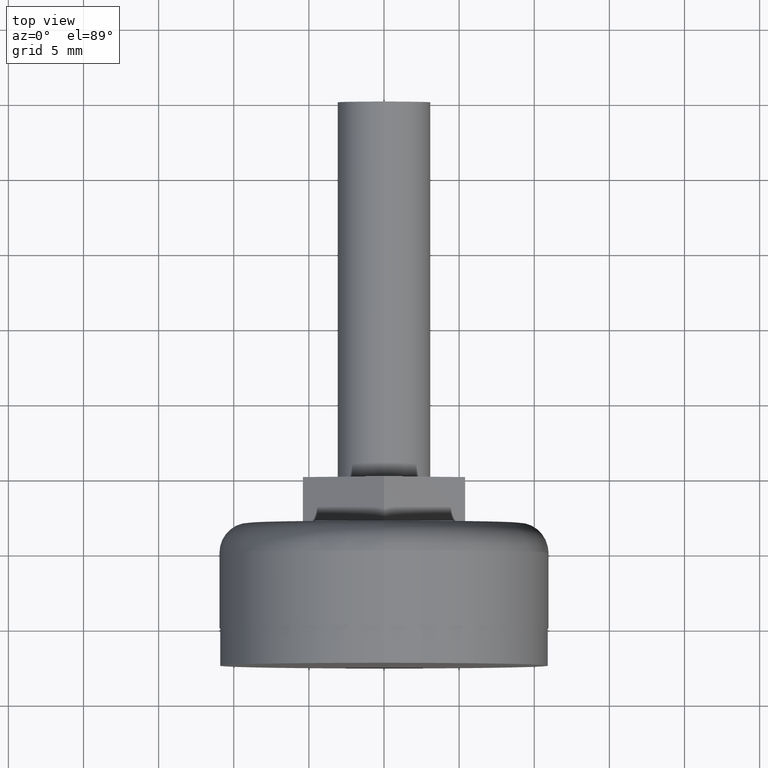
[diagram: clean part render]
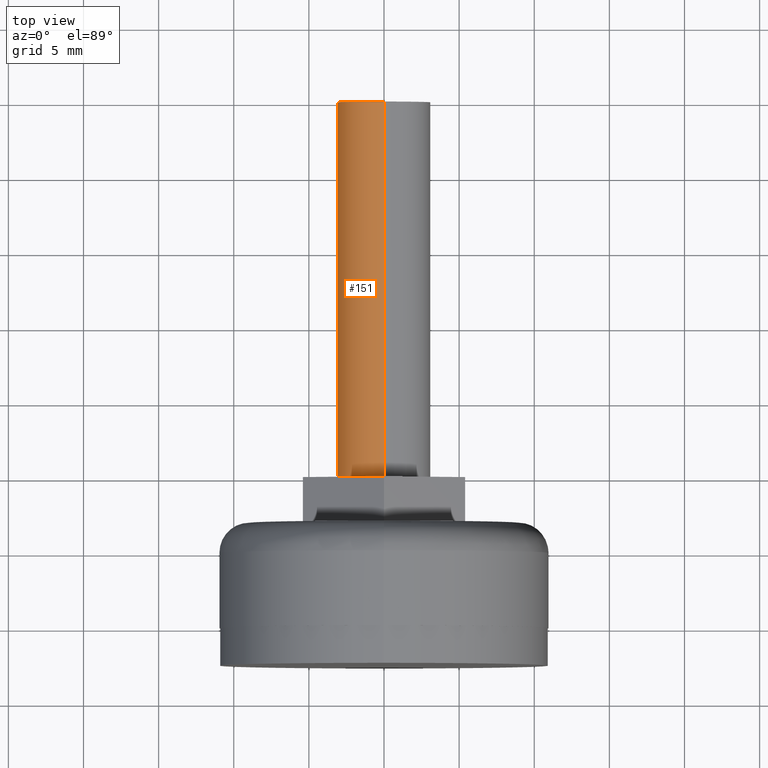
[diagram: same view with one face highlighted and labeled with its STEP entity id]
A machine part, top view. The second image highlights one B-rep face of the part: STEP entity #151.
In plain terms, the highlighted cylindrical surface (partial cylindrical patch) has radius 3.1 mm, axis along (-0, -1, -0).
Its self-contained STEP definition (entity closure, byte-faithful):
#22 = EDGE_CURVE ( 'NONE', #68, #77, #282, .T. ) ;
#28 = AXIS2_PLACEMENT_3D ( 'NONE', #591, #571, #569 ) ;
#39 = EDGE_CURVE ( 'NONE', #59, #77, #261, .T. ) ;
#45 = AXIS2_PLACEMENT_3D ( 'NONE', #212, #160, #168 ) ;
#46 = EDGE_CURVE ( 'NONE', #75, #59, #325, .T. ) ;
#47 = EDGE_CURVE ( 'NONE', #75, #68, #331, .T. ) ;
#59 = VERTEX_POINT ( 'NONE', #164 ) ;
#68 = VERTEX_POINT ( 'NONE', #193 ) ;
#75 = VERTEX_POINT ( 'NONE', #177 ) ;
#77 = VERTEX_POINT ( 'NONE', #220 ) ;
#110 = DIRECTION ( 'NONE',  ( -0.0000000000000000000, -1.000000000000000000, -0.0000000000000000000 ) ) ;
#140 = CARTESIAN_POINT ( 'NONE',  ( 0.0000000000000000000, 35.00000000000000000, 0.0000000000000000000 ) ) ;
#148 = DIRECTION ( 'NONE',  ( 0.0000000000000000000, 0.0000000000000000000, -1.000000000000000000 ) ) ;
#151 = ADVANCED_FACE ( 'NONE', ( #327 ), #276, .T. ) ;
#160 = DIRECTION ( 'NONE',  ( 0.0000000000000000000, 1.000000000000000000, 0.0000000000000000000 ) ) ;
#164 = CARTESIAN_POINT ( 'NONE',  ( 3.796405077356794900E-016, 35.00000000000000000, 3.100000000000000100 ) ) ;
#168 = DIRECTION ( 'NONE',  ( 0.0000000000000000000, 0.0000000000000000000, 1.000000000000000000 ) ) ;
#177 = CARTESIAN_POINT ( 'NONE',  ( 0.0000000000000000000, 35.00000000000000000, -3.100000000000000100 ) ) ;
#183 = CARTESIAN_POINT ( 'NONE',  ( 0.0000000000000000000, 35.00000000000000000, -3.100000000000000100 ) ) ;
#185 = DIRECTION ( 'NONE',  ( -0.0000000000000000000, -1.000000000000000000, -0.0000000000000000000 ) ) ;
#193 = CARTESIAN_POINT ( 'NONE',  ( 0.0000000000000000000, 10.00000000000000200, -3.100000000000000100 ) ) ;
#206 = DIRECTION ( 'NONE',  ( -0.0000000000000000000, -1.000000000000000000, -0.0000000000000000000 ) ) ;
#212 = CARTESIAN_POINT ( 'NONE',  ( 0.0000000000000000000, 35.00000000000000000, 0.0000000000000000000 ) ) ;
#220 = CARTESIAN_POINT ( 'NONE',  ( 3.796405077356794900E-016, 10.00000000000000200, 3.100000000000000100 ) ) ;
#251 = AXIS2_PLACEMENT_3D ( 'NONE', #140, #110, #148 ) ;
#261 = LINE ( 'NONE', #580, #328 ) ;
#276 = CYLINDRICAL_SURFACE ( 'NONE', #251, 3.100000000000000100 ) ;
#282 = CIRCLE ( 'NONE', #28, 3.100000000000000100 ) ;
#324 = VECTOR ( 'NONE', #185, 1000.000000000000000 ) ;
#325 = CIRCLE ( 'NONE', #45, 3.100000000000000100 ) ;
#327 = FACE_OUTER_BOUND ( 'NONE', #507, .T. ) ;
#328 = VECTOR ( 'NONE', #206, 1000.000000000000000 ) ;
#331 = LINE ( 'NONE', #183, #324 ) ;
#458 = ORIENTED_EDGE ( 'NONE', *, *, #22, .T. ) ;
#491 = ORIENTED_EDGE ( 'NONE', *, *, #39, .F. ) ;
#507 = EDGE_LOOP ( 'NONE', ( #491, #541, #511, #458 ) ) ;
#511 = ORIENTED_EDGE ( 'NONE', *, *, #47, .T. ) ;
#541 = ORIENTED_EDGE ( 'NONE', *, *, #46, .F. ) ;
#569 = DIRECTION ( 'NONE',  ( 0.0000000000000000000, 0.0000000000000000000, 1.000000000000000000 ) ) ;
#571 = DIRECTION ( 'NONE',  ( 0.0000000000000000000, 1.000000000000000000, -0.0000000000000000000 ) ) ;
#580 = CARTESIAN_POINT ( 'NONE',  ( 3.796405077356794900E-016, 35.00000000000000000, 3.100000000000000100 ) ) ;
#591 = CARTESIAN_POINT ( 'NONE',  ( 0.0000000000000000000, 10.00000000000000200, 0.0000000000000000000 ) ) ;